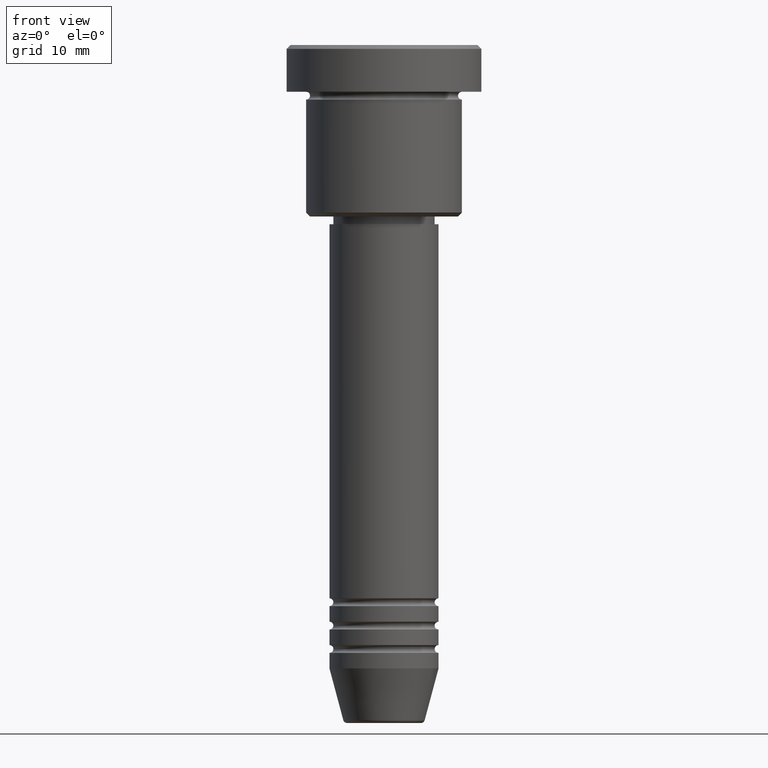
[diagram: clean part render]
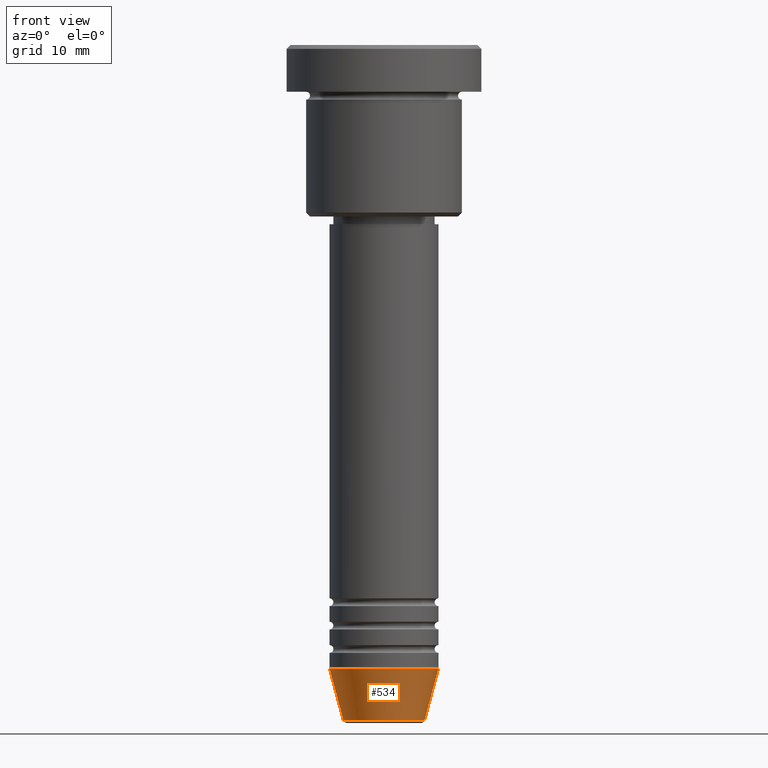
[diagram: same view with one face highlighted and labeled with its STEP entity id]
A machine part, front view. The second image highlights one B-rep face of the part: STEP entity #534.
In plain terms, the highlighted conical surface has half-angle 15 deg.
Its self-contained STEP definition (entity closure, byte-faithful):
#33 = AXIS2_PLACEMENT_3D ( 'NONE', #475, #555, #1017 ) ;
#87 = FACE_OUTER_BOUND ( 'NONE', #762, .T. ) ;
#176 = CARTESIAN_POINT ( 'NONE',  ( 7.000000000000000000, 0.000000000000000000, -79.99999999999998579 ) ) ;
#182 = CARTESIAN_POINT ( 'NONE',  ( 0.000000000000000000, 0.000000000000000000, -79.99999999999998579 ) ) ;
#183 = ORIENTED_EDGE ( 'NONE', *, *, #1114, .F. ) ;
#199 = EDGE_CURVE ( 'NONE', #304, #478, #619, .T. ) ;
#254 = DIRECTION ( 'NONE',  ( 1.000000000000000000, 0.000000000000000000, 0.000000000000000000 ) ) ;
#255 = ORIENTED_EDGE ( 'NONE', *, *, #199, .T. ) ;
#266 = AXIS2_PLACEMENT_3D ( 'NONE', #182, #457, #254 ) ;
#304 = VERTEX_POINT ( 'NONE', #423 ) ;
#321 = CARTESIAN_POINT ( 'NONE',  ( 0.000000000000000000, 0.000000000000000000, -86.62940952255125637 ) ) ;
#369 = CARTESIAN_POINT ( 'NONE',  ( -5.223655072137187716, 7.484830028987059188E-16, -86.62940952255125637 ) ) ;
#373 = ORIENTED_EDGE ( 'NONE', *, *, #1078, .F. ) ;
#423 = CARTESIAN_POINT ( 'NONE',  ( 5.223655072137187716, 0.000000000000000000, -86.62940952255125637 ) ) ;
#428 = CIRCLE ( 'NONE', #33, 7.000000000000000000 ) ;
#440 = DIRECTION ( 'NONE',  ( 0.2588190451025214056, 0.000000000000000000, 0.9659258262890680902 ) ) ;
#450 = ORIENTED_EDGE ( 'NONE', *, *, #801, .T. ) ;
#456 = LINE ( 'NONE', #927, #549 ) ;
#457 = DIRECTION ( 'NONE',  ( -0.000000000000000000, -0.000000000000000000, 1.000000000000000000 ) ) ;
#475 = CARTESIAN_POINT ( 'NONE',  ( 0.000000000000000000, 0.000000000000000000, -79.99999999999998579 ) ) ;
#478 = VERTEX_POINT ( 'NONE', #176 ) ;
#534 = ADVANCED_FACE ( 'NONE', ( #87 ), #980, .T. ) ;
#549 = VECTOR ( 'NONE', #752, 1000.000000000000000 ) ;
#555 = DIRECTION ( 'NONE',  ( -0.000000000000000000, -0.000000000000000000, 1.000000000000000000 ) ) ;
#585 = VERTEX_POINT ( 'NONE', #369 ) ;
#588 = DIRECTION ( 'NONE',  ( 1.000000000000000000, 0.000000000000000000, 0.000000000000000000 ) ) ;
#619 = LINE ( 'NONE', #985, #1000 ) ;
#697 = DIRECTION ( 'NONE',  ( -0.000000000000000000, -0.000000000000000000, 1.000000000000000000 ) ) ;
#700 = CIRCLE ( 'NONE', #940, 5.223655072137187716 ) ;
#752 = DIRECTION ( 'NONE',  ( -0.2588190451025214056, 3.169619151431772953E-17, 0.9659258262890680902 ) ) ;
#762 = EDGE_LOOP ( 'NONE', ( #183, #450, #255, #373 ) ) ;
#801 = EDGE_CURVE ( 'NONE', #585, #304, #700, .T. ) ;
#827 = CARTESIAN_POINT ( 'NONE',  ( -7.000000000000000000, 8.572527594031473190E-16, -79.99999999999998579 ) ) ;
#927 = CARTESIAN_POINT ( 'NONE',  ( -7.000000000000000000, 8.572527594031473190E-16, -79.99999999999998579 ) ) ;
#940 = AXIS2_PLACEMENT_3D ( 'NONE', #321, #697, #588 ) ;
#980 = CONICAL_SURFACE ( 'NONE', #266, 7.000000000000000000, 0.2617993877991501295 ) ;
#985 = CARTESIAN_POINT ( 'NONE',  ( 7.000000000000000000, 0.000000000000000000, -79.99999999999998579 ) ) ;
#1000 = VECTOR ( 'NONE', #440, 1000.000000000000000 ) ;
#1003 = VERTEX_POINT ( 'NONE', #827 ) ;
#1017 = DIRECTION ( 'NONE',  ( 1.000000000000000000, 0.000000000000000000, 0.000000000000000000 ) ) ;
#1078 = EDGE_CURVE ( 'NONE', #1003, #478, #428, .T. ) ;
#1114 = EDGE_CURVE ( 'NONE', #585, #1003, #456, .T. ) ;